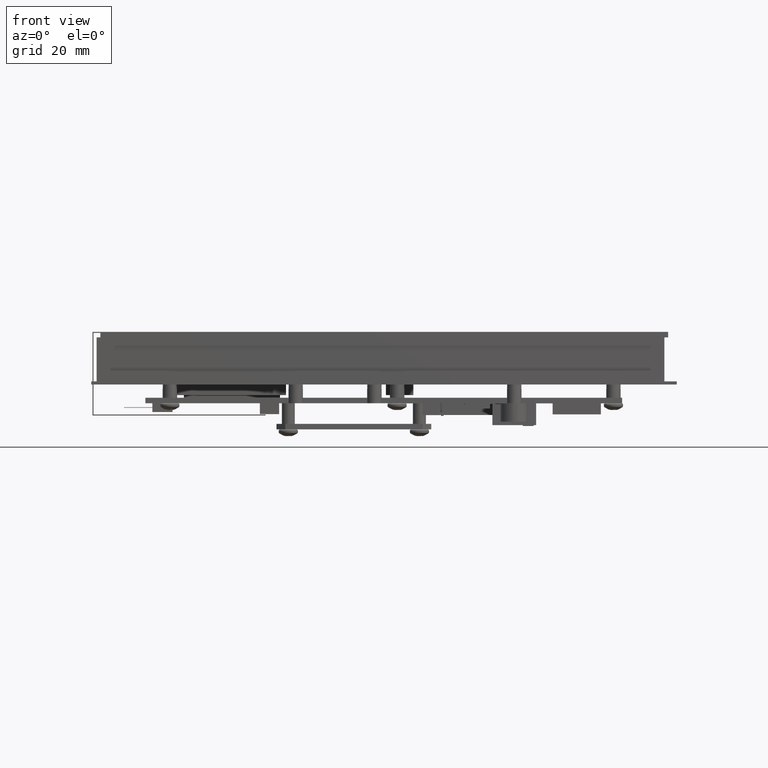
[diagram: clean part render]
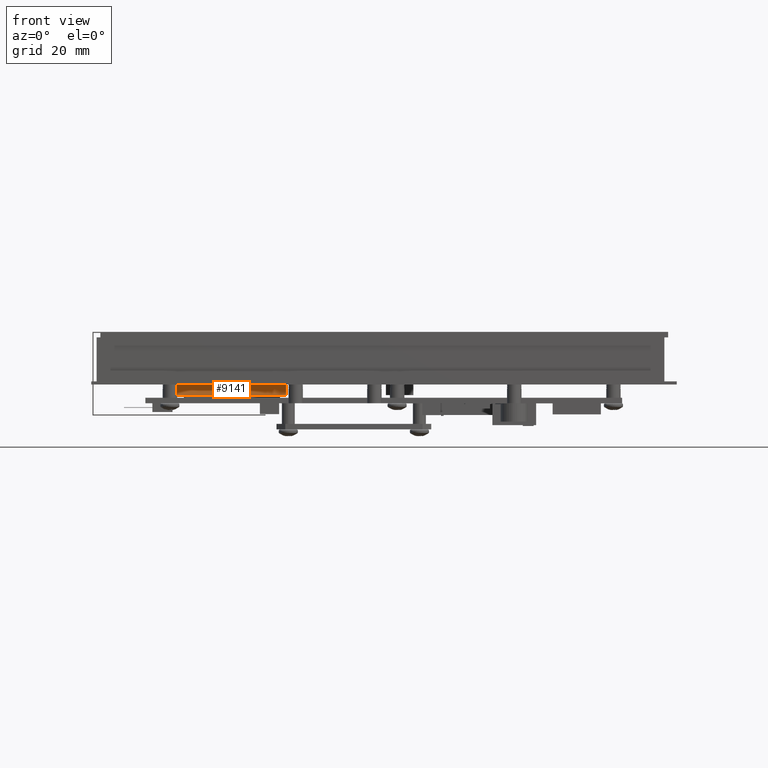
[diagram: same view with one face highlighted and labeled with its STEP entity id]
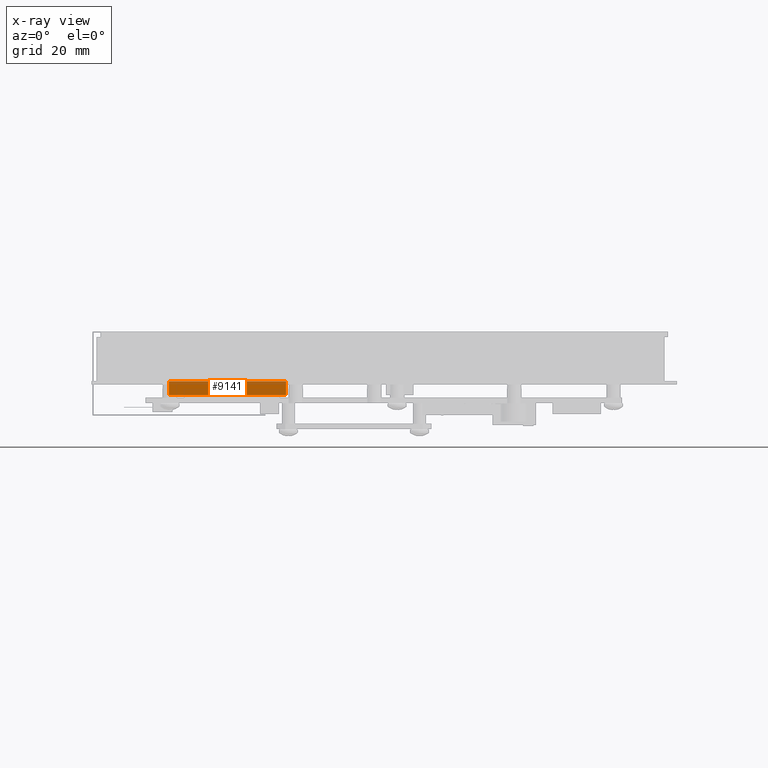
[diagram: x-ray of the same camera — body ghosted, the highlighted face saturated]
A machine part, front view. The second image highlights one B-rep face of the part: STEP entity #9141.
The next image is the same camera in x-ray: the body ghosted, the highlighted face saturated — about 25% of this face is hidden behind the body in this view.
In plain terms, the highlighted planar face has unit normal (0, 1, 0).
Its self-contained STEP definition (entity closure, byte-faithful):
#937 = CARTESIAN_POINT ( 'NONE',  ( -1.080708661417322900, -0.7496062992125991400, -0.1574803149606299200 ) ) ;
#945 = FACE_OUTER_BOUND ( 'NONE', #22975, .T. ) ;
#946 = PLANE ( 'NONE',  #11788 ) ;
#948 = DIRECTION ( 'NONE',  ( 0.0000000000000000000, 1.000000000000000000, 0.0000000000000000000 ) ) ;
#949 = DIRECTION ( 'NONE',  ( 0.0000000000000000000, -0.0000000000000000000, 1.000000000000000000 ) ) ;
#9141 = ADVANCED_FACE ( 'NONE', ( #945 ), #946, .F. ) ;
#9431 = EDGE_CURVE ( 'NONE', #22666, #22665, #10161, .T. ) ;
#9481 = EDGE_CURVE ( 'NONE', #22698, #22665, #10285, .T. ) ;
#9882 = VECTOR ( 'NONE', #10171, 39.37007874015748100 ) ;
#9930 = VECTOR ( 'NONE', #10321, 39.37007874015748100 ) ;
#10161 = LINE ( 'NONE', #10169, #9882 ) ;
#10169 = CARTESIAN_POINT ( 'NONE',  ( -1.080708661417322900, -0.7496062992125991400, 0.0000000000000000000 ) ) ;
#10171 = DIRECTION ( 'NONE',  ( -1.000000000000000000, 0.0000000000000000000, 0.0000000000000000000 ) ) ;
#10285 = LINE ( 'NONE', #10319, #9930 ) ;
#10319 = CARTESIAN_POINT ( 'NONE',  ( -2.419291338582677300, -0.7496062992125991400, -0.1574803149606299200 ) ) ;
#10321 = DIRECTION ( 'NONE',  ( -0.0000000000000000000, -0.0000000000000000000, 1.000000000000000000 ) ) ;
#11034 = LINE ( 'NONE', #11035, #11229 ) ;
#11035 = CARTESIAN_POINT ( 'NONE',  ( -1.080708661417322900, -0.7496062992125991400, -0.1574803149606299200 ) ) ;
#11036 = DIRECTION ( 'NONE',  ( -0.0000000000000000000, -0.0000000000000000000, 1.000000000000000000 ) ) ;
#11040 = LINE ( 'NONE', #11041, #11176 ) ;
#11041 = CARTESIAN_POINT ( 'NONE',  ( -1.080708661417322900, -0.7496062992125991400, -0.1574803149606299200 ) ) ;
#11042 = DIRECTION ( 'NONE',  ( -1.000000000000000000, 0.0000000000000000000, 0.0000000000000000000 ) ) ;
#11176 = VECTOR ( 'NONE', #11042, 39.37007874015748100 ) ;
#11229 = VECTOR ( 'NONE', #11036, 39.37007874015748100 ) ;
#11788 = AXIS2_PLACEMENT_3D ( 'NONE', #937, #948, #949 ) ;
#15351 = ORIENTED_EDGE ( 'NONE', *, *, #9431, .T. ) ;
#15352 = ORIENTED_EDGE ( 'NONE', *, *, #9481, .F. ) ;
#15353 = ORIENTED_EDGE ( 'NONE', *, *, #15479, .F. ) ;
#15354 = ORIENTED_EDGE ( 'NONE', *, *, #15477, .T. ) ;
#15477 = EDGE_CURVE ( 'NONE', #22691, #22666, #11034, .T. ) ;
#15479 = EDGE_CURVE ( 'NONE', #22691, #22698, #11040, .T. ) ;
#19847 = CARTESIAN_POINT ( 'NONE',  ( -2.419291338582677300, -0.7496062992125991400, 0.0000000000000000000 ) ) ;
#19848 = CARTESIAN_POINT ( 'NONE',  ( -1.080708661417322900, -0.7496062992125993600, 0.0000000000000000000 ) ) ;
#19873 = CARTESIAN_POINT ( 'NONE',  ( -1.080708661417322900, -0.7496062992125991400, -0.1574803149606299200 ) ) ;
#19880 = CARTESIAN_POINT ( 'NONE',  ( -2.419291338582677300, -0.7496062992125991400, -0.1574803149606299200 ) ) ;
#22665 = VERTEX_POINT ( 'NONE', #19847 ) ;
#22666 = VERTEX_POINT ( 'NONE', #19848 ) ;
#22691 = VERTEX_POINT ( 'NONE', #19873 ) ;
#22698 = VERTEX_POINT ( 'NONE', #19880 ) ;
#22975 = EDGE_LOOP ( 'NONE', ( #15351, #15352, #15353, #15354 ) ) ;